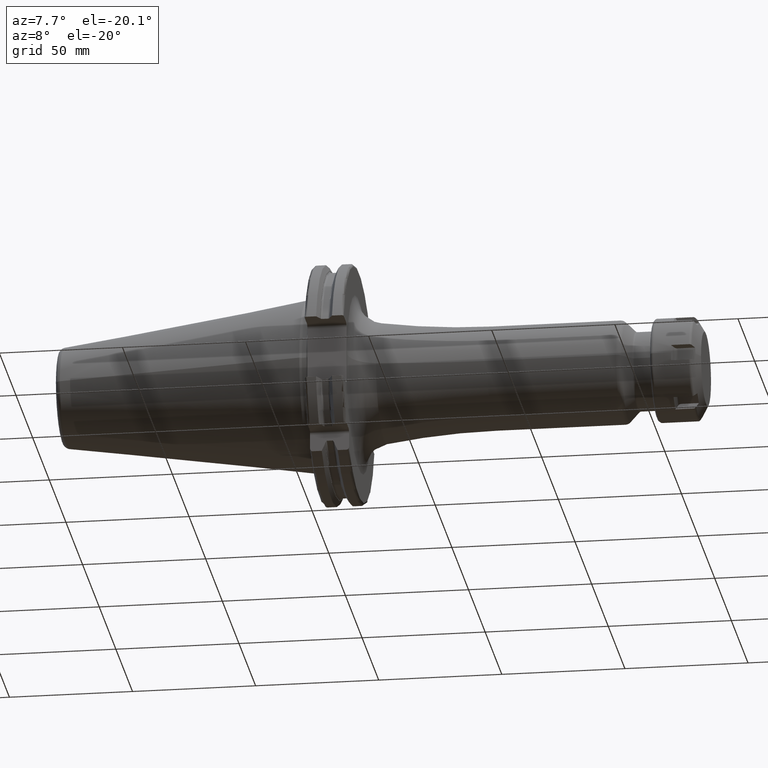
[diagram: clean part render]
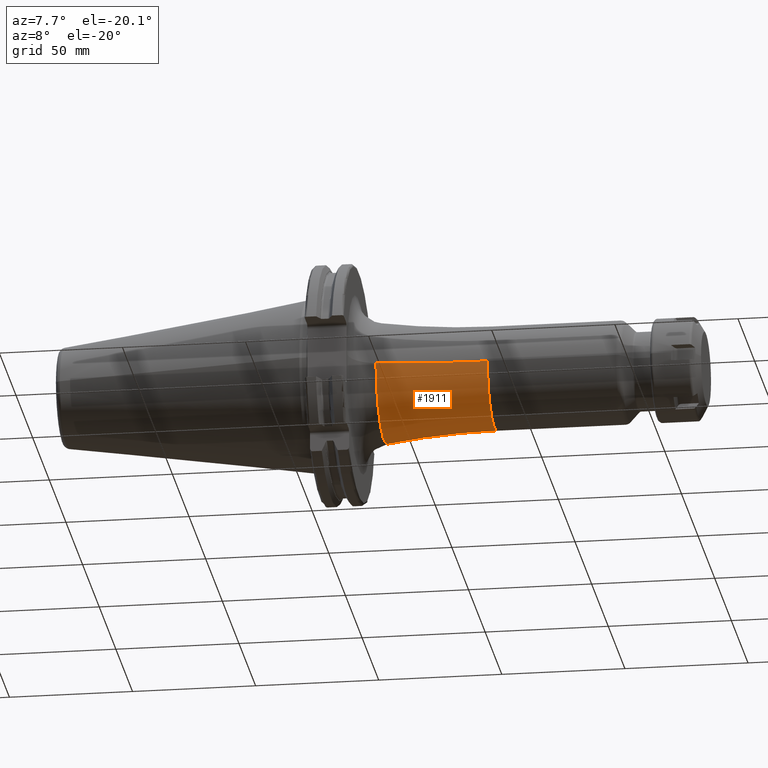
[diagram: same view with one face highlighted and labeled with its STEP entity id]
A machine part, auxiliary view. The second image highlights one B-rep face of the part: STEP entity #1911.
In plain terms, the highlighted toroidal blend (fillet) surface has major radius 321 mm and minor (blend) radius 300 mm.
Its self-contained STEP definition (entity closure, byte-faithful):
#205=CARTESIAN_POINT('',(2.925833333333E1,0.E0,0.E0));
#206=DIRECTION('',(1.E0,0.E0,0.E0));
#207=DIRECTION('',(0.E0,-1.E0,0.E0));
#208=AXIS2_PLACEMENT_3D('',#205,#206,#207);
#210=CARTESIAN_POINT('',(7.405E1,-3.21E2,-7.862232450526E-14));
#211=DIRECTION('',(0.E0,0.E0,1.E0));
#212=DIRECTION('',(0.E0,1.E0,0.E0));
#213=AXIS2_PLACEMENT_3D('',#210,#211,#212);
#215=CARTESIAN_POINT('',(7.405E1,3.21E2,3.931116225263E-14));
#216=DIRECTION('',(0.E0,0.E0,-1.E0));
#217=DIRECTION('',(0.E0,-1.E0,0.E0));
#218=AXIS2_PLACEMENT_3D('',#215,#216,#217);
#220=CARTESIAN_POINT('',(7.405E1,0.E0,0.E0));
#221=DIRECTION('',(1.E0,0.E0,0.E0));
#222=DIRECTION('',(0.E0,-1.E0,0.E0));
#223=AXIS2_PLACEMENT_3D('',#220,#221,#222);
#1605=CARTESIAN_POINT('',(2.925833333333E1,-2.436266823405E1,0.E0));
#1606=CARTESIAN_POINT('',(2.925833333333E1,2.436266823405E1,0.E0));
#1607=VERTEX_POINT('',#1605);
#1608=VERTEX_POINT('',#1606);
#1611=CARTESIAN_POINT('',(7.405E1,2.1E1,0.E0));
#1612=VERTEX_POINT('',#1611);
#1613=CARTESIAN_POINT('',(7.405E1,-2.1E1,0.E0));
#1614=VERTEX_POINT('',#1613);
#1899=CARTESIAN_POINT('',(7.405E1,0.E0,0.E0));
#1900=DIRECTION('',(1.E0,0.E0,0.E0));
#1901=DIRECTION('',(0.E0,-1.E0,0.E0));
#1902=AXIS2_PLACEMENT_3D('',#1899,#1900,#1901);
#1903=TOROIDAL_SURFACE('',#1902,3.21E2,3.E2);
#1904=ORIENTED_EDGE('',*,*,#1862,.F.);
#1905=ORIENTED_EDGE('',*,*,#1894,.F.);
#1907=ORIENTED_EDGE('',*,*,#1906,.T.);
#1908=ORIENTED_EDGE('',*,*,#1890,.T.);
#1909=EDGE_LOOP('',(#1904,#1905,#1907,#1908));
#1910=FACE_OUTER_BOUND('',#1909,.F.);
#1911=ADVANCED_FACE('',(#1910),#1903,.F.);
#209=CIRCLE('',#208,2.436266823405E1);
#214=CIRCLE('',#213,3.E2);
#219=CIRCLE('',#218,3.E2);
#224=CIRCLE('',#223,2.1E1);
#1862=EDGE_CURVE('',#1607,#1608,#209,.T.);
#1890=EDGE_CURVE('',#1612,#1608,#219,.T.);
#1894=EDGE_CURVE('',#1614,#1607,#214,.T.);
#1906=EDGE_CURVE('',#1614,#1612,#224,.T.);